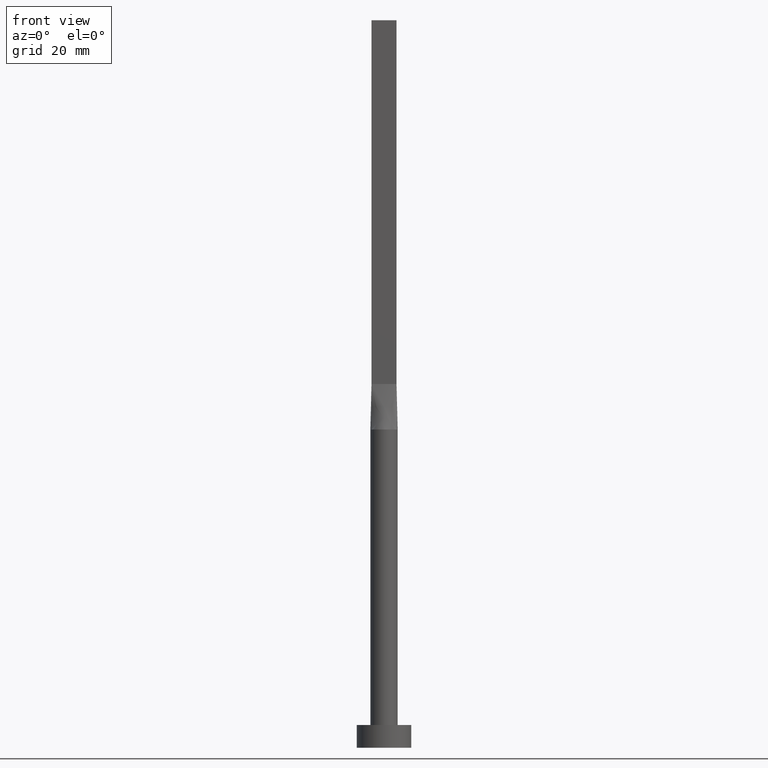
[diagram: clean part render]
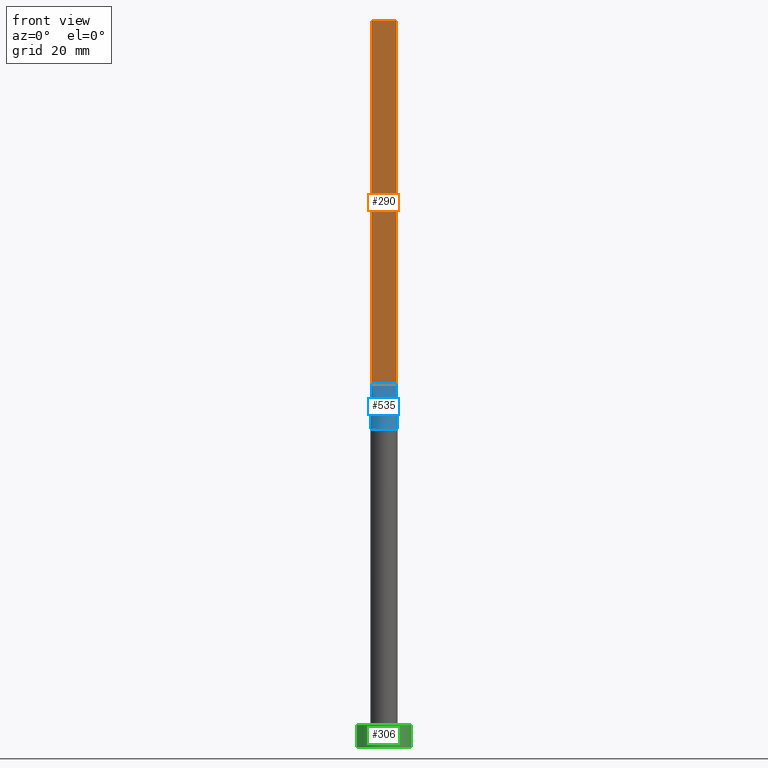
[diagram: same view with three faces highlighted in distinct colors, each labeled with its STEP entity id]
A machine part, front view with three faces highlighted in distinct colors.
Their STEP definitions:

[orange] entity #290 — the highlighted planar face has unit normal (0, 1, -0).
#3 = LINE ( 'NONE', #549, #202 ) ;
#11 = EDGE_CURVE ( 'NONE', #215, #514, #333, .T. ) ;
#14 = CARTESIAN_POINT ( 'NONE',  ( 2.750000000000000000, -0.7499999999999997780, 80.00000000000000000 ) ) ;
#18 = ORIENTED_EDGE ( 'NONE', *, *, #462, .T. ) ;
#20 = VERTEX_POINT ( 'NONE', #184 ) ;
#23 = VERTEX_POINT ( 'NONE', #412 ) ;
#53 = ORIENTED_EDGE ( 'NONE', *, *, #569, .F. ) ;
#89 = CARTESIAN_POINT ( 'NONE',  ( 2.750000000000000000, -0.7499999999999997780, 160.0000000000000000 ) ) ;
#144 = ORIENTED_EDGE ( 'NONE', *, *, #367, .T. ) ;
#184 = CARTESIAN_POINT ( 'NONE',  ( -2.750000000000000000, -0.7499999999999994449, 160.0000000000000000 ) ) ;
#202 = VECTOR ( 'NONE', #460, 1000.000000000000000 ) ;
#215 = VERTEX_POINT ( 'NONE', #271 ) ;
#249 = PLANE ( 'NONE',  #311 ) ;
#257 = DIRECTION ( 'NONE',  ( 5.913830031739115543E-17, 1.000000000000000000, -0.000000000000000000 ) ) ;
#271 = CARTESIAN_POINT ( 'NONE',  ( 2.750000000000000000, -0.7499999999999997780, 160.0000000000000000 ) ) ;
#282 = DIRECTION ( 'NONE',  ( -0.000000000000000000, -0.000000000000000000, -1.000000000000000000 ) ) ;
#289 = LINE ( 'NONE', #415, #399 ) ;
#290 = ADVANCED_FACE ( 'NONE', ( #296 ), #249, .F. ) ;
#296 = FACE_OUTER_BOUND ( 'NONE', #474, .T. ) ;
#311 = AXIS2_PLACEMENT_3D ( 'NONE', #554, #257, #351 ) ;
#333 = LINE ( 'NONE', #89, #353 ) ;
#351 = DIRECTION ( 'NONE',  ( -1.000000000000000000, 5.913830031739115543E-17, 0.000000000000000000 ) ) ;
#353 = VECTOR ( 'NONE', #282, 1000.000000000000000 ) ;
#367 = EDGE_CURVE ( 'NONE', #20, #23, #289, .T. ) ;
#399 = VECTOR ( 'NONE', #454, 1000.000000000000000 ) ;
#412 = CARTESIAN_POINT ( 'NONE',  ( -2.750000000000000000, -0.7499999999999994449, 80.00000000000000000 ) ) ;
#415 = CARTESIAN_POINT ( 'NONE',  ( -2.750000000000000000, -0.7499999999999994449, 160.0000000000000000 ) ) ;
#432 = VECTOR ( 'NONE', #473, 1000.000000000000000 ) ;
#433 = CARTESIAN_POINT ( 'NONE',  ( -2.750000000000000000, -0.7499999999999994449, 160.0000000000000000 ) ) ;
#454 = DIRECTION ( 'NONE',  ( -0.000000000000000000, -0.000000000000000000, -1.000000000000000000 ) ) ;
#460 = DIRECTION ( 'NONE',  ( 1.000000000000000000, -5.913830031739115543E-17, 0.000000000000000000 ) ) ;
#462 = EDGE_CURVE ( 'NONE', #23, #514, #3, .T. ) ;
#473 = DIRECTION ( 'NONE',  ( 1.000000000000000000, -5.913830031739115543E-17, 0.000000000000000000 ) ) ;
#474 = EDGE_LOOP ( 'NONE', ( #18, #565, #53, #144 ) ) ;
#514 = VERTEX_POINT ( 'NONE', #14 ) ;
#518 = LINE ( 'NONE', #433, #432 ) ;
#549 = CARTESIAN_POINT ( 'NONE',  ( -2.750000000000000000, -0.7499999999999994449, 80.00000000000000000 ) ) ;
#554 = CARTESIAN_POINT ( 'NONE',  ( -2.750000000000000000, -0.7499999999999994449, 160.0000000000000000 ) ) ;
#565 = ORIENTED_EDGE ( 'NONE', *, *, #11, .F. ) ;
#569 = EDGE_CURVE ( 'NONE', #20, #215, #518, .T. ) ;

[blue] entity #535 — the highlighted face is a freeform B-spline surface patch.
#1 = CARTESIAN_POINT ( 'NONE',  ( -1.833333333333335258, -0.7499999999999995559, 79.99999999999998579 ) ) ;
#3 = LINE ( 'NONE', #549, #202 ) ;
#4 = CARTESIAN_POINT ( 'NONE',  ( -2.822145731856598783, -0.7696761086881626079, 75.00000000000001421 ) ) ;
#12 = CARTESIAN_POINT ( 'NONE',  ( -2.520833333333333925, -0.7499999999999994449, 79.99999999999998579 ) ) ;
#14 = CARTESIAN_POINT ( 'NONE',  ( 2.750000000000000000, -0.7499999999999997780, 80.00000000000000000 ) ) ;
#23 = VERTEX_POINT ( 'NONE', #412 ) ;
#25 = CARTESIAN_POINT ( 'NONE',  ( 2.291666666666665630, -0.7499999999999997780, 79.99999999999998579 ) ) ;
#46 = CARTESIAN_POINT ( 'NONE',  ( 0.9166666666666637431, -0.7499999999999995559, 79.99999999999998579 ) ) ;
#50 = CARTESIAN_POINT ( 'NONE',  ( -0.4583333333333366455, -0.7499999999999995559, 79.99999999999998579 ) ) ;
#57 = CARTESIAN_POINT ( 'NONE',  ( 2.733316749964666670, -1.269511353635832229, 69.99999999999998579 ) ) ;
#86 = DIRECTION ( 'NONE',  ( -0.01442753284129401174, 0.003934781683989412894, 0.9998881756422629552 ) ) ;
#96 = CARTESIAN_POINT ( 'NONE',  ( 0.4583333333333300397, -0.7499999999999995559, 79.99999999999998579 ) ) ;
#98 = CARTESIAN_POINT ( 'NONE',  ( 1.833333333333331705, -0.7499999999999997780, 79.99999999999998579 ) ) ;
#105 = CARTESIAN_POINT ( 'NONE',  ( -2.442412046818594806, -1.765588549521968975, 69.99999999999998579 ) ) ;
#108 = CARTESIAN_POINT ( 'NONE',  ( 2.750000000000000000, -0.7499999999999997780, 80.00000000000000000 ) ) ;
#112 = VERTEX_POINT ( 'NONE', #500 ) ;
#139 = FACE_OUTER_BOUND ( 'NONE', #165, .T. ) ;
#141 = EDGE_CURVE ( 'NONE', #501, #514, #323, .T. ) ;
#143 = CARTESIAN_POINT ( 'NONE',  ( 2.822145731856598339, -0.7696761086881637182, 75.00000000000001421 ) ) ;
#145 = DIRECTION ( 'NONE',  ( 1.000000000000000000, 0.000000000000000000, 0.000000000000000000 ) ) ;
#148 = DIRECTION ( 'NONE',  ( 0.000000000000000000, 0.000000000000000000, 1.000000000000000000 ) ) ;
#154 = CARTESIAN_POINT ( 'NONE',  ( -2.894291463713197121, -0.7893522173763257710, 70.00000000000000000 ) ) ;
#165 = EDGE_LOOP ( 'NONE', ( #471, #309, #434, #324 ) ) ;
#196 = CARTESIAN_POINT ( 'NONE',  ( -2.291666666666667851, -0.7499999999999995559, 79.99999999999998579 ) ) ;
#197 = CARTESIAN_POINT ( 'NONE',  ( -2.248179627679386616, -2.014142483996539390, 70.00000000000000000 ) ) ;
#202 = VECTOR ( 'NONE', #460, 1000.000000000000000 ) ;
#234 = CARTESIAN_POINT ( 'NONE',  ( -1.447928580458859749, -2.653161878569118226, 70.00000000000000000 ) ) ;
#240 = CARTESIAN_POINT ( 'NONE',  ( -0.2291666666666700158, -0.7499999999999995559, 80.00000000000000000 ) ) ;
#244 = CARTESIAN_POINT ( 'NONE',  ( 0.000000000000000000, 0.000000000000000000, 70.00000000000000000 ) ) ;
#261 = CARTESIAN_POINT ( 'NONE',  ( 2.520833333333333037, -0.7499999999999997780, 79.99999999999998579 ) ) ;
#285 = CARTESIAN_POINT ( 'NONE',  ( 2.894514141151844910, -0.7894138151126538494, 70.00000000000000000 ) ) ;
#288 = CARTESIAN_POINT ( 'NONE',  ( 1.447928580458857972, -2.653161878569119558, 69.99999999999998579 ) ) ;
#297 = CARTESIAN_POINT ( 'NONE',  ( -0.3818979204996094667, -3.000000000000000000, 70.00000000000000000 ) ) ;
#309 = ORIENTED_EDGE ( 'NONE', *, *, #141, .T. ) ;
#323 = LINE ( 'NONE', #143, #515 ) ;
#324 = ORIENTED_EDGE ( 'NONE', *, *, #355, .T. ) ;
#326 = CARTESIAN_POINT ( 'NONE',  ( -1.145833333333336368, -0.7499999999999995559, 79.99999999999998579 ) ) ;
#327 = DIRECTION ( 'NONE',  ( -0.01442753284129405511, -0.003934781683989273249, -0.9998881756422629552 ) ) ;
#329 = CARTESIAN_POINT ( 'NONE',  ( -1.604166666666669183, -0.7499999999999995559, 79.99999999999998579 ) ) ;
#335 = CARTESIAN_POINT ( 'NONE',  ( 0.2291666666666632990, -0.7499999999999995559, 79.99999999999998579 ) ) ;
#336 = CIRCLE ( 'NONE', #416, 3.000000000000000444 ) ;
#337 = CARTESIAN_POINT ( 'NONE',  ( -2.750000000000000000, -0.7499999999999994449, 80.00000000000000000 ) ) ;
#339 = CARTESIAN_POINT ( 'NONE',  ( 2.830829925251657997, -1.022044525068636078, 70.00000000000001421 ) ) ;
#355 = EDGE_CURVE ( 'NONE', #23, #112, #410, .T. ) ;
#365 = CARTESIAN_POINT ( 'NONE',  ( -0.7628506052746809596, -2.924692134573154245, 70.00000000000000000 ) ) ;
#369 = CARTESIAN_POINT ( 'NONE',  ( 2.248179627679384840, -2.014142483996542055, 69.99999999999998579 ) ) ;
#370 = B_SPLINE_SURFACE_WITH_KNOTS ( 'NONE', 3, 1, ( 
 ( #154, #337 ),
 ( #414, #12 ),
 ( #505, #196 ),
 ( #105, #1 ),
 ( #197, #329 ),
 ( #540, #326 ),
 ( #234, #450 ),
 ( #365, #50 ),
 ( #297, #240 ),
 ( #504, #335 ),
 ( #502, #96 ),
 ( #288, #46 ),
 ( #409, #452 ),
 ( #369, #543 ),
 ( #506, #98 ),
 ( #57, #25 ),
 ( #339, #261 ),
 ( #555, #108 ) ),
 .UNSPECIFIED., .F., .F., .F.,
 ( 4, 2, 2, 2, 2, 2, 2, 2, 4 ),
 ( 2, 2 ),
 ( 0.000000000000000000, 0.1250000000000000000, 0.2500000000000000000, 0.3750000000000000000, 0.5000000000000000000, 0.6250000000000000000, 0.7500000000000000000, 0.8750000000000000000, 1.000000000000000000 ),
 ( 0.000000000000000000, 1.000000000000000000 ),
 .UNSPECIFIED. ) ;
#409 = CARTESIAN_POINT ( 'NONE',  ( 1.751288851749020603, -2.458468820606023897, 70.00000000000001421 ) ) ;
#410 = LINE ( 'NONE', #4, #508 ) ;
#412 = CARTESIAN_POINT ( 'NONE',  ( -2.750000000000000000, -0.7499999999999994449, 80.00000000000000000 ) ) ;
#414 = CARTESIAN_POINT ( 'NONE',  ( -2.830829925251658885, -1.022044525068633858, 70.00000000000001421 ) ) ;
#416 = AXIS2_PLACEMENT_3D ( 'NONE', #244, #148, #145 ) ;
#434 = ORIENTED_EDGE ( 'NONE', *, *, #462, .F. ) ;
#450 = CARTESIAN_POINT ( 'NONE',  ( -0.9166666666666698493, -0.7499999999999995559, 79.99999999999998579 ) ) ;
#452 = CARTESIAN_POINT ( 'NONE',  ( 1.145833333333330817, -0.7499999999999996669, 79.99999999999998579 ) ) ;
#460 = DIRECTION ( 'NONE',  ( 1.000000000000000000, -5.913830031739115543E-17, 0.000000000000000000 ) ) ;
#462 = EDGE_CURVE ( 'NONE', #23, #514, #3, .T. ) ;
#471 = ORIENTED_EDGE ( 'NONE', *, *, #486, .T. ) ;
#486 = EDGE_CURVE ( 'NONE', #112, #501, #336, .T. ) ;
#500 = CARTESIAN_POINT ( 'NONE',  ( -2.894489875237701959, -0.7894071376467488577, 70.00000000000000000 ) ) ;
#501 = VERTEX_POINT ( 'NONE', #285 ) ;
#502 = CARTESIAN_POINT ( 'NONE',  ( 0.7628506052746785171, -2.924692134573155577, 70.00000000000000000 ) ) ;
#504 = CARTESIAN_POINT ( 'NONE',  ( 0.3818979204996068022, -3.000000000000001332, 70.00000000000000000 ) ) ;
#505 = CARTESIAN_POINT ( 'NONE',  ( -2.733316749964668446, -1.269511353635829787, 69.99999999999998579 ) ) ;
#506 = CARTESIAN_POINT ( 'NONE',  ( 2.442412046818594362, -1.765588549521970751, 70.00000000000001421 ) ) ;
#508 = VECTOR ( 'NONE', #327, 1000.000000000000114 ) ;
#514 = VERTEX_POINT ( 'NONE', #14 ) ;
#515 = VECTOR ( 'NONE', #86, 1000.000000000000114 ) ;
#535 = ADVANCED_FACE ( 'NONE', ( #139 ), #370, .T. ) ;
#540 = CARTESIAN_POINT ( 'NONE',  ( -1.751288851749022379, -2.458468820606022565, 69.99999999999998579 ) ) ;
#543 = CARTESIAN_POINT ( 'NONE',  ( 1.604166666666664520, -0.7499999999999997780, 79.99999999999998579 ) ) ;
#549 = CARTESIAN_POINT ( 'NONE',  ( -2.750000000000000000, -0.7499999999999994449, 80.00000000000000000 ) ) ;
#555 = CARTESIAN_POINT ( 'NONE',  ( 2.894291463713196677, -0.7893522173763275473, 70.00000000000000000 ) ) ;

[green] entity #306 — the highlighted cylindrical surface (edge-blend (fillet) strip) has radius 6 mm, axis along (-0, -0, -1).
#60 = CYLINDRICAL_SURFACE ( 'NONE', #153, 6.000000000000000888 ) ;
#68 = CARTESIAN_POINT ( 'NONE',  ( 6.000000000000000888, 7.347880794884120722E-16, 5.000000000000000000 ) ) ;
#90 = CARTESIAN_POINT ( 'NONE',  ( 0.000000000000000000, 0.000000000000000000, 5.000000000000000000 ) ) ;
#92 = DIRECTION ( 'NONE',  ( 0.000000000000000000, 0.000000000000000000, 1.000000000000000000 ) ) ;
#104 = EDGE_CURVE ( 'NONE', #560, #167, #539, .T. ) ;
#120 = VERTEX_POINT ( 'NONE', #147 ) ;
#125 = CARTESIAN_POINT ( 'NONE',  ( -6.000000000000000888, 0.000000000000000000, 5.000000000000000000 ) ) ;
#147 = CARTESIAN_POINT ( 'NONE',  ( -6.000000000000000888, 0.000000000000000000, 5.000000000000000000 ) ) ;
#150 = CARTESIAN_POINT ( 'NONE',  ( 0.000000000000000000, 0.000000000000000000, 5.000000000000000000 ) ) ;
#153 = AXIS2_PLACEMENT_3D ( 'NONE', #150, #332, #247 ) ;
#167 = VERTEX_POINT ( 'NONE', #287 ) ;
#169 = DIRECTION ( 'NONE',  ( -0.000000000000000000, -0.000000000000000000, -1.000000000000000000 ) ) ;
#176 = LINE ( 'NONE', #125, #522 ) ;
#191 = DIRECTION ( 'NONE',  ( 0.000000000000000000, 0.000000000000000000, 1.000000000000000000 ) ) ;
#207 = VECTOR ( 'NONE', #441, 1000.000000000000000 ) ;
#213 = EDGE_CURVE ( 'NONE', #120, #560, #176, .T. ) ;
#238 = EDGE_CURVE ( 'NONE', #266, #167, #267, .T. ) ;
#247 = DIRECTION ( 'NONE',  ( -1.000000000000000000, 0.000000000000000000, 0.000000000000000000 ) ) ;
#252 = AXIS2_PLACEMENT_3D ( 'NONE', #90, #191, #375 ) ;
#266 = VERTEX_POINT ( 'NONE', #68 ) ;
#267 = LINE ( 'NONE', #344, #207 ) ;
#287 = CARTESIAN_POINT ( 'NONE',  ( 6.000000000000000888, 7.347880794884120722E-16, 0.000000000000000000 ) ) ;
#302 = AXIS2_PLACEMENT_3D ( 'NONE', #538, #92, #532 ) ;
#306 = ADVANCED_FACE ( 'NONE', ( #548 ), #60, .T. ) ;
#332 = DIRECTION ( 'NONE',  ( -0.000000000000000000, -0.000000000000000000, -1.000000000000000000 ) ) ;
#344 = CARTESIAN_POINT ( 'NONE',  ( 6.000000000000000888, 7.347880794884120722E-16, 5.000000000000000000 ) ) ;
#346 = ORIENTED_EDGE ( 'NONE', *, *, #468, .F. ) ;
#375 = DIRECTION ( 'NONE',  ( 1.000000000000000000, 0.000000000000000000, 0.000000000000000000 ) ) ;
#383 = EDGE_LOOP ( 'NONE', ( #519, #346, #386, #520 ) ) ;
#386 = ORIENTED_EDGE ( 'NONE', *, *, #213, .T. ) ;
#441 = DIRECTION ( 'NONE',  ( -0.000000000000000000, -0.000000000000000000, -1.000000000000000000 ) ) ;
#468 = EDGE_CURVE ( 'NONE', #120, #266, #531, .T. ) ;
#512 = CARTESIAN_POINT ( 'NONE',  ( -6.000000000000000888, 0.000000000000000000, 0.000000000000000000 ) ) ;
#519 = ORIENTED_EDGE ( 'NONE', *, *, #238, .F. ) ;
#520 = ORIENTED_EDGE ( 'NONE', *, *, #104, .T. ) ;
#522 = VECTOR ( 'NONE', #169, 1000.000000000000000 ) ;
#531 = CIRCLE ( 'NONE', #252, 6.000000000000000888 ) ;
#532 = DIRECTION ( 'NONE',  ( 1.000000000000000000, 0.000000000000000000, 0.000000000000000000 ) ) ;
#538 = CARTESIAN_POINT ( 'NONE',  ( 0.000000000000000000, 0.000000000000000000, 0.000000000000000000 ) ) ;
#539 = CIRCLE ( 'NONE', #302, 6.000000000000000888 ) ;
#548 = FACE_OUTER_BOUND ( 'NONE', #383, .T. ) ;
#560 = VERTEX_POINT ( 'NONE', #512 ) ;